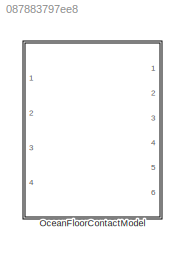
MODEL slx_087883797ee8
KIND library
CONFIG AbsTol = auto
CONFIG EnableMultiTasking = off
CONFIG FixedStep = auto
CONFIG MaxStep = auto
CONFIG MinStep = auto
CONFIG RelTol = 1e-3
CONFIG SampleTimeConstraint = Unconstrained
CONFIG Solver = VariableStepAuto
CONFIG SolverName = VariableStepAuto
CONFIG StartTime = 0.0
CONFIG StopTime = 10.0
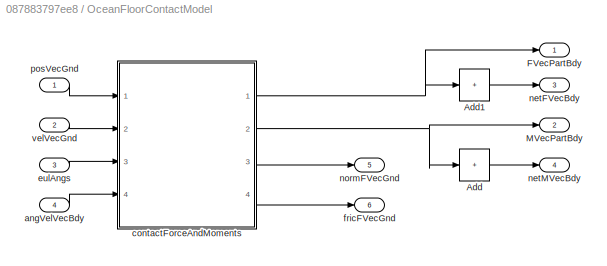
BLOCK [SubSystem] OceanFloorContactModel
  Ports = [4, 6]
  RequestExecContextInheritance = off
  TreatAsAtomicUnit = on
BLOCK [Sum] OceanFloorContactModel/Add
  CollapseDim = 2
  CollapseMode = Specified dimension
  IconShape = rectangular
  Inputs = +
  Ports = [1, 1]
BLOCK [Sum] OceanFloorContactModel/Add1
  CollapseDim = 2
  CollapseMode = Specified dimension
  IconShape = rectangular
  Inputs = +
  Ports = [1, 1]
BLOCK [Outport] OceanFloorContactModel/FVecPartBdy
BLOCK [Outport] OceanFloorContactModel/MVecPartBdy
  Port = 2
BLOCK [Inport] OceanFloorContactModel/angVelVecBdy
  Port = 4
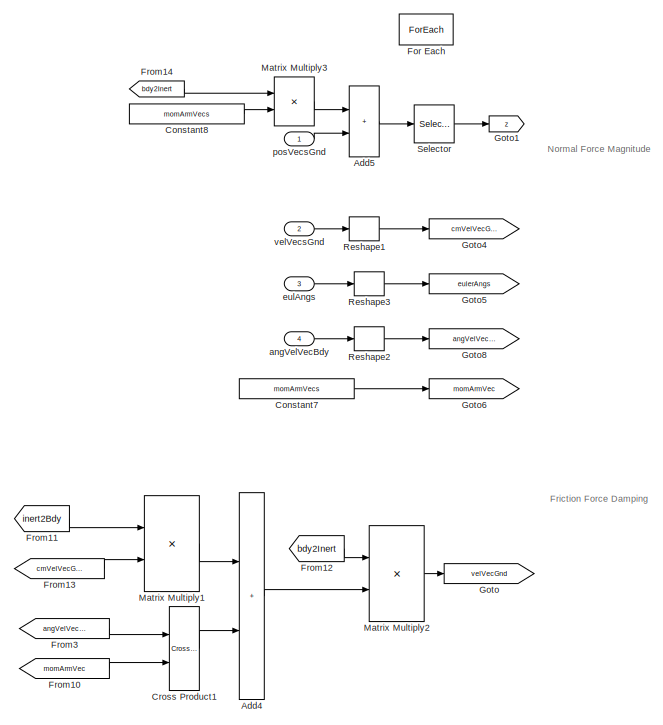
[diagram: OceanFloorContactModel/contactForceAndMoments - part 1/2, left side, full height]
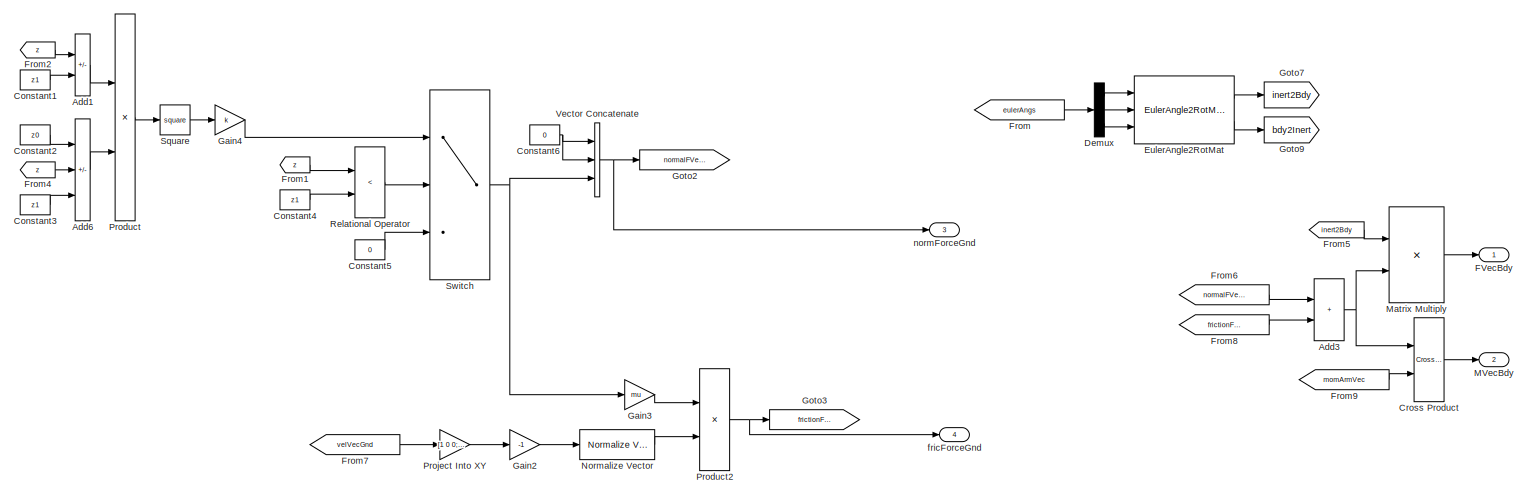
[diagram: OceanFloorContactModel/contactForceAndMoments - part 2/2, middle right region]
BLOCK [SubSystem] OceanFloorContactModel/contactForceAndMoments
  Ports = [4, 4]
  RequestExecContextInheritance = off
BLOCK [Sum] OceanFloorContactModel/contactForceAndMoments/Add1
  IconShape = rectangular
  Inputs = +-
  Ports = [2, 1]
BLOCK [Sum] OceanFloorContactModel/contactForceAndMoments/Add3
  IconShape = rectangular
  Ports = [2, 1]
BLOCK [Sum] OceanFloorContactModel/contactForceAndMoments/Add4
  IconShape = rectangular
  Ports = [2, 1]
BLOCK [Sum] OceanFloorContactModel/contactForceAndMoments/Add5
  IconShape = rectangular
  Ports = [2, 1]
BLOCK [Sum] OceanFloorContactModel/contactForceAndMoments/Add6
  IconShape = rectangular
  Inputs = +-+
  Ports = [3, 1]
BLOCK [Constant] OceanFloorContactModel/contactForceAndMoments/Constant1
  Value = z1
BLOCK [Constant] OceanFloorContactModel/contactForceAndMoments/Constant2
  Value = z0
BLOCK [Constant] OceanFloorContactModel/contactForceAndMoments/Constant3
  Value = z1
BLOCK [Constant] OceanFloorContactModel/contactForceAndMoments/Constant4
  Value = z1
BLOCK [Constant] OceanFloorContactModel/contactForceAndMoments/Constant5
  Value = 0
BLOCK [Constant] OceanFloorContactModel/contactForceAndMoments/Constant6
  Value = 0
BLOCK [Constant] OceanFloorContactModel/contactForceAndMoments/Constant7
  Value = momArmVecs
BLOCK [Constant] OceanFloorContactModel/contactForceAndMoments/Constant8
  Value = momArmVecs
BLOCK [Reference] OceanFloorContactModel/contactForceAndMoments/Cross Product  REF=vrlib/Utilities/Cross Product
  Ports = [2, 1]
  SourceBlock = vrlib/Utilities/Cross Product
  SourceProductBaseCode = SL
  SourceType = Cross Product
BLOCK [Reference] OceanFloorContactModel/contactForceAndMoments/Cross Product1  REF=vrlib/Utilities/Cross Product
  Ports = [2, 1]
  SourceBlock = vrlib/Utilities/Cross Product
  SourceProductBaseCode = SL
  SourceType = Cross Product
BLOCK [Demux] OceanFloorContactModel/contactForceAndMoments/Demux
  Outputs = 3
  Ports = [1, 3]
BLOCK [Reference] OceanFloorContactModel/contactForceAndMoments/EulerAngle2RotMat  REF=eulAng2RotMat_ul/EulerAngle2RotMat
  Ports = [3, 2]
  SourceBlock = eulAng2RotMat_ul/EulerAngle2RotMat
  SourceType = SubSystem
BLOCK [Outport] OceanFloorContactModel/contactForceAndMoments/FVecBdy
  ConcatenationDimension = 2
BLOCK [ForEach] OceanFloorContactModel/contactForceAndMoments/For Each
  DisableCoverage = on
  IterateSubsysMaskParameter = off,off,off,off,off,on,off
  Ports = []
  SubsysMaskParameterIterationDimension = 1,1,1,1,1,2,1
BLOCK [From] OceanFloorContactModel/contactForceAndMoments/From
  GotoTag = eulerAngs
BLOCK [From] OceanFloorContactModel/contactForceAndMoments/From1
  GotoTag = z
BLOCK [From] OceanFloorContactModel/contactForceAndMoments/From10
  GotoTag = momArmVec
BLOCK [From] OceanFloorContactModel/contactForceAndMoments/From11
  GotoTag = inert2Bdy
BLOCK [From] OceanFloorContactModel/contactForceAndMoments/From12
  GotoTag = bdy2Inert
BLOCK [From] OceanFloorContactModel/contactForceAndMoments/From13
  GotoTag = cmVelVecGnd
BLOCK [From] OceanFloorContactModel/contactForceAndMoments/From14
  GotoTag = bdy2Inert
BLOCK [From] OceanFloorContactModel/contactForceAndMoments/From2
  GotoTag = z
BLOCK [From] OceanFloorContactModel/contactForceAndMoments/From3
  GotoTag = angVelVecBdy
BLOCK [From] OceanFloorContactModel/contactForceAndMoments/From4
  GotoTag = z
BLOCK [From] OceanFloorContactModel/contactForceAndMoments/From5
  GotoTag = inert2Bdy
BLOCK [From] OceanFloorContactModel/contactForceAndMoments/From6
  GotoTag = normalFVecGnd
BLOCK [From] OceanFloorContactModel/contactForceAndMoments/From7
  GotoTag = velVecGnd
BLOCK [From] OceanFloorContactModel/contactForceAndMoments/From8
  GotoTag = frictionFVecGnd
BLOCK [From] OceanFloorContactModel/contactForceAndMoments/From9
  GotoTag = momArmVec
BLOCK [Gain] OceanFloorContactModel/contactForceAndMoments/Gain2
  Gain = -1
BLOCK [Gain] OceanFloorContactModel/contactForceAndMoments/Gain3
  Gain = mu
BLOCK [Gain] OceanFloorContactModel/contactForceAndMoments/Gain4
  Gain = k
BLOCK [Goto] OceanFloorContactModel/contactForceAndMoments/Goto
  GotoTag = velVecGnd
BLOCK [Goto] OceanFloorContactModel/contactForceAndMoments/Goto1
  GotoTag = z
BLOCK [Goto] OceanFloorContactModel/contactForceAndMoments/Goto2
  GotoTag = normalFVecGnd
BLOCK [Goto] OceanFloorContactModel/contactForceAndMoments/Goto3
  GotoTag = frictionFVecGnd
BLOCK [Goto] OceanFloorContactModel/contactForceAndMoments/Goto4
  GotoTag = cmVelVecGnd
BLOCK [Goto] OceanFloorContactModel/contactForceAndMoments/Goto5
  GotoTag = eulerAngs
BLOCK [Goto] OceanFloorContactModel/contactForceAndMoments/Goto6
  GotoTag = momArmVec
BLOCK [Goto] OceanFloorContactModel/contactForceAndMoments/Goto7
  GotoTag = inert2Bdy
BLOCK [Goto] OceanFloorContactModel/contactForceAndMoments/Goto8
  GotoTag = angVelVecBdy
BLOCK [Goto] OceanFloorContactModel/contactForceAndMoments/Goto9
  GotoTag = bdy2Inert
BLOCK [Outport] OceanFloorContactModel/contactForceAndMoments/MVecBdy
  ConcatenationDimension = 2
  Port = 2
BLOCK [Product] OceanFloorContactModel/contactForceAndMoments/Matrix Multiply
  Multiplication = Matrix(*)
  Ports = [2, 1]
BLOCK [Product] OceanFloorContactModel/contactForceAndMoments/Matrix Multiply1
  Multiplication = Matrix(*)
  Ports = [2, 1]
BLOCK [Product] OceanFloorContactModel/contactForceAndMoments/Matrix Multiply2
  Multiplication = Matrix(*)
  Ports = [2, 1]
BLOCK [Product] OceanFloorContactModel/contactForceAndMoments/Matrix Multiply3
  Multiplication = Matrix(*)
  Ports = [2, 1]
BLOCK [Reference] OceanFloorContactModel/contactForceAndMoments/Normalize Vector  REF=vrlib/Utilities/Normalize Vector
  Ports = [1, 1]
  SourceBlock = vrlib/Utilities/Normalize Vector
  SourceProductBaseCode = SL
  SourceType = Normalize Vector
BLOCK [Product] OceanFloorContactModel/contactForceAndMoments/Product
  Inputs = */
  Ports = [2, 1]
BLOCK [Product] OceanFloorContactModel/contactForceAndMoments/Product2
  Ports = [2, 1]
BLOCK [Gain] OceanFloorContactModel/contactForceAndMoments/Project Into XY
  Gain = [1 0 0;0 1 0;0 0 0]
  Multiplication = Matrix(K*u)
BLOCK [RelationalOperator] OceanFloorContactModel/contactForceAndMoments/Relational Operator
  InputSameDT = off
  Operator = <
  OutDataTypeStr = boolean
  Ports = [2, 1]
  RndMeth = Simplest
BLOCK [Reshape] OceanFloorContactModel/contactForceAndMoments/Reshape1
  OutputDimensionality = Column vector (2-D)
  Ports = [1, 1]
BLOCK [Reshape] OceanFloorContactModel/contactForceAndMoments/Reshape2
  OutputDimensionality = Column vector (2-D)
  Ports = [1, 1]
BLOCK [Reshape] OceanFloorContactModel/contactForceAndMoments/Reshape3
  OutputDimensionality = Column vector (2-D)
  Ports = [1, 1]
BLOCK [Selector] OceanFloorContactModel/contactForceAndMoments/Selector
  IndexOptions = Index vector (dialog)
  Indices = 3
  InputPortWidth = 3
  OutputSizes = 1
  Ports = [1, 1]
BLOCK [Math] OceanFloorContactModel/contactForceAndMoments/Square
  Operator = square
  Ports = [1, 1]
BLOCK [Switch] OceanFloorContactModel/contactForceAndMoments/Switch
  Criteria = u2 > Threshold
  InputSameDT = off
  SaturateOnIntegerOverflow = off
BLOCK [Concatenate] OceanFloorContactModel/contactForceAndMoments/Vector Concatenate
  NumInputs = 3
  Ports = [3, 1]
BLOCK [Inport] OceanFloorContactModel/contactForceAndMoments/angVelVecBdy
  Port = 4
  PortDimensions = [3 1]
BLOCK [Inport] OceanFloorContactModel/contactForceAndMoments/eulAngs
  Port = 3
  PortDimensions = [3 1]
BLOCK [Outport] OceanFloorContactModel/contactForceAndMoments/fricForceGnd
  ConcatenationDimension = 2
  Port = 4
BLOCK [Outport] OceanFloorContactModel/contactForceAndMoments/normForceGnd
  ConcatenationDimension = 2
  Port = 3
BLOCK [Inport] OceanFloorContactModel/contactForceAndMoments/posVecsGnd
  PortDimensions = [3 1]
BLOCK [Inport] OceanFloorContactModel/contactForceAndMoments/velVecsGnd
  Port = 2
  PortDimensions = [3 1]
BLOCK [Inport] OceanFloorContactModel/eulAngs
  Port = 3
BLOCK [Outport] OceanFloorContactModel/fricFVecGnd
  Port = 6
BLOCK [Outport] OceanFloorContactModel/netFVecBdy
  Port = 3
BLOCK [Outport] OceanFloorContactModel/netMVecBdy
  Port = 4
BLOCK [Outport] OceanFloorContactModel/normFVecGnd
  Port = 5
BLOCK [Inport] OceanFloorContactModel/posVecGnd
BLOCK [Inport] OceanFloorContactModel/velVecGnd
  Port = 2
ANNOTATION OceanFloorContactModel/contactForceAndMoments: Friction Force Damping
ANNOTATION OceanFloorContactModel/contactForceAndMoments: Normal Force Magnitude
LINE OceanFloorContactModel/Add1:1 -> OceanFloorContactModel/netFVecBdy:1
LINE OceanFloorContactModel/Add:1 -> OceanFloorContactModel/netMVecBdy:1
LINE OceanFloorContactModel/angVelVecBdy:1 -> OceanFloorContactModel/contactForceAndMoments:4
LINE OceanFloorContactModel/contactForceAndMoments/Add1:1 -> OceanFloorContactModel/contactForceAndMoments/Product:1
NET OceanFloorContactModel/contactForceAndMoments/Add3:1 -> OceanFloorContactModel/contactForceAndMoments/Cross Product:1, OceanFloorContactModel/contactForceAndMoments/Matrix Multiply:2
LINE OceanFloorContactModel/contactForceAndMoments/Add4:1 -> OceanFloorContactModel/contactForceAndMoments/Matrix Multiply2:2
LINE OceanFloorContactModel/contactForceAndMoments/Add5:1 -> OceanFloorContactModel/contactForceAndMoments/Selector:1
LINE OceanFloorContactModel/contactForceAndMoments/Add6:1 -> OceanFloorContactModel/contactForceAndMoments/Product:2
LINE OceanFloorContactModel/contactForceAndMoments/Constant1:1 -> OceanFloorContactModel/contactForceAndMoments/Add1:2
LINE OceanFloorContactModel/contactForceAndMoments/Constant2:1 -> OceanFloorContactModel/contactForceAndMoments/Add6:1
LINE OceanFloorContactModel/contactForceAndMoments/Constant3:1 -> OceanFloorContactModel/contactForceAndMoments/Add6:3
LINE OceanFloorContactModel/contactForceAndMoments/Constant4:1 -> OceanFloorContactModel/contactForceAndMoments/Relational Operator:2
LINE OceanFloorContactModel/contactForceAndMoments/Constant5:1 -> OceanFloorContactModel/contactForceAndMoments/Switch:3
NET OceanFloorContactModel/contactForceAndMoments/Constant6:1 -> OceanFloorContactModel/contactForceAndMoments/Vector Concatenate:1, OceanFloorContactModel/contactForceAndMoments/Vector Concatenate:2
LINE OceanFloorContactModel/contactForceAndMoments/Constant7:1 -> OceanFloorContactModel/contactForceAndMoments/Goto6:1
LINE OceanFloorContactModel/contactForceAndMoments/Constant8:1 -> OceanFloorContactModel/contactForceAndMoments/Matrix Multiply3:2
LINE OceanFloorContactModel/contactForceAndMoments/Cross Product1:1 -> OceanFloorContactModel/contactForceAndMoments/Add4:2
LINE OceanFloorContactModel/contactForceAndMoments/Cross Product:1 -> OceanFloorContactModel/contactForceAndMoments/MVecBdy:1
LINE OceanFloorContactModel/contactForceAndMoments/Demux:1 -> OceanFloorContactModel/contactForceAndMoments/EulerAngle2RotMat:1
LINE OceanFloorContactModel/contactForceAndMoments/Demux:2 -> OceanFloorContactModel/contactForceAndMoments/EulerAngle2RotMat:2
LINE OceanFloorContactModel/contactForceAndMoments/Demux:3 -> OceanFloorContactModel/contactForceAndMoments/EulerAngle2RotMat:3
LINE OceanFloorContactModel/contactForceAndMoments/EulerAngle2RotMat:1 -> OceanFloorContactModel/contactForceAndMoments/Goto7:1
LINE OceanFloorContactModel/contactForceAndMoments/EulerAngle2RotMat:2 -> OceanFloorContactModel/contactForceAndMoments/Goto9:1
LINE OceanFloorContactModel/contactForceAndMoments/From10:1 -> OceanFloorContactModel/contactForceAndMoments/Cross Product1:2
LINE OceanFloorContactModel/contactForceAndMoments/From11:1 -> OceanFloorContactModel/contactForceAndMoments/Matrix Multiply1:1
LINE OceanFloorContactModel/contactForceAndMoments/From12:1 -> OceanFloorContactModel/contactForceAndMoments/Matrix Multiply2:1
LINE OceanFloorContactModel/contactForceAndMoments/From13:1 -> OceanFloorContactModel/contactForceAndMoments/Matrix Multiply1:2
LINE OceanFloorContactModel/contactForceAndMoments/From14:1 -> OceanFloorContactModel/contactForceAndMoments/Matrix Multiply3:1
LINE OceanFloorContactModel/contactForceAndMoments/From1:1 -> OceanFloorContactModel/contactForceAndMoments/Relational Operator:1
LINE OceanFloorContactModel/contactForceAndMoments/From2:1 -> OceanFloorContactModel/contactForceAndMoments/Add1:1
LINE OceanFloorContactModel/contactForceAndMoments/From3:1 -> OceanFloorContactModel/contactForceAndMoments/Cross Product1:1
LINE OceanFloorContactModel/contactForceAndMoments/From4:1 -> OceanFloorContactModel/contactForceAndMoments/Add6:2
LINE OceanFloorContactModel/contactForceAndMoments/From5:1 -> OceanFloorContactModel/contactForceAndMoments/Matrix Multiply:1
LINE OceanFloorContactModel/contactForceAndMoments/From6:1 -> OceanFloorContactModel/contactForceAndMoments/Add3:1
LINE OceanFloorContactModel/contactForceAndMoments/From7:1 -> OceanFloorContactModel/contactForceAndMoments/Project Into XY:1
LINE OceanFloorContactModel/contactForceAndMoments/From8:1 -> OceanFloorContactModel/contactForceAndMoments/Add3:2
LINE OceanFloorContactModel/contactForceAndMoments/From9:1 -> OceanFloorContactModel/contactForceAndMoments/Cross Product:2
LINE OceanFloorContactModel/contactForceAndMoments/From:1 -> OceanFloorContactModel/contactForceAndMoments/Demux:1
LINE OceanFloorContactModel/contactForceAndMoments/Gain2:1 -> OceanFloorContactModel/contactForceAndMoments/Normalize Vector:1
LINE OceanFloorContactModel/contactForceAndMoments/Gain3:1 -> OceanFloorContactModel/contactForceAndMoments/Product2:1
LINE OceanFloorContactModel/contactForceAndMoments/Gain4:1 -> OceanFloorContactModel/contactForceAndMoments/Switch:1
LINE OceanFloorContactModel/contactForceAndMoments/Matrix Multiply1:1 -> OceanFloorContactModel/contactForceAndMoments/Add4:1
LINE OceanFloorContactModel/contactForceAndMoments/Matrix Multiply2:1 -> OceanFloorContactModel/contactForceAndMoments/Goto:1
LINE OceanFloorContactModel/contactForceAndMoments/Matrix Multiply3:1 -> OceanFloorContactModel/contactForceAndMoments/Add5:1
LINE OceanFloorContactModel/contactForceAndMoments/Matrix Multiply:1 -> OceanFloorContactModel/contactForceAndMoments/FVecBdy:1
LINE OceanFloorContactModel/contactForceAndMoments/Normalize Vector:1 -> OceanFloorContactModel/contactForceAndMoments/Product2:2
NET OceanFloorContactModel/contactForceAndMoments/Product2:1 -> OceanFloorContactModel/contactForceAndMoments/Goto3:1, OceanFloorContactModel/contactForceAndMoments/fricForceGnd:1
LINE OceanFloorContactModel/contactForceAndMoments/Product:1 -> OceanFloorContactModel/contactForceAndMoments/Square:1
LINE OceanFloorContactModel/contactForceAndMoments/Project Into XY:1 -> OceanFloorContactModel/contactForceAndMoments/Gain2:1
LINE OceanFloorContactModel/contactForceAndMoments/Relational Operator:1 -> OceanFloorContactModel/contactForceAndMoments/Switch:2
LINE OceanFloorContactModel/contactForceAndMoments/Reshape1:1 -> OceanFloorContactModel/contactForceAndMoments/Goto4:1
LINE OceanFloorContactModel/contactForceAndMoments/Reshape2:1 -> OceanFloorContactModel/contactForceAndMoments/Goto8:1
LINE OceanFloorContactModel/contactForceAndMoments/Reshape3:1 -> OceanFloorContactModel/contactForceAndMoments/Goto5:1
LINE OceanFloorContactModel/contactForceAndMoments/Selector:1 -> OceanFloorContactModel/contactForceAndMoments/Goto1:1
LINE OceanFloorContactModel/contactForceAndMoments/Square:1 -> OceanFloorContactModel/contactForceAndMoments/Gain4:1
NET OceanFloorContactModel/contactForceAndMoments/Switch:1 -> OceanFloorContactModel/contactForceAndMoments/Gain3:1, OceanFloorContactModel/contactForceAndMoments/Vector Concatenate:3
NET OceanFloorContactModel/contactForceAndMoments/Vector Concatenate:1 -> OceanFloorContactModel/contactForceAndMoments/Goto2:1, OceanFloorContactModel/contactForceAndMoments/normForceGnd:1
LINE OceanFloorContactModel/contactForceAndMoments/angVelVecBdy:1 -> OceanFloorContactModel/contactForceAndMoments/Reshape2:1
LINE OceanFloorContactModel/contactForceAndMoments/eulAngs:1 -> OceanFloorContactModel/contactForceAndMoments/Reshape3:1
LINE OceanFloorContactModel/contactForceAndMoments/posVecsGnd:1 -> OceanFloorContactModel/contactForceAndMoments/Add5:2
LINE OceanFloorContactModel/contactForceAndMoments/velVecsGnd:1 -> OceanFloorContactModel/contactForceAndMoments/Reshape1:1
NET OceanFloorContactModel/contactForceAndMoments:1 -> OceanFloorContactModel/Add1:1, OceanFloorContactModel/FVecPartBdy:1
NET OceanFloorContactModel/contactForceAndMoments:2 -> OceanFloorContactModel/Add:1, OceanFloorContactModel/MVecPartBdy:1
LINE OceanFloorContactModel/contactForceAndMoments:3 -> OceanFloorContactModel/normFVecGnd:1
LINE OceanFloorContactModel/contactForceAndMoments:4 -> OceanFloorContactModel/fricFVecGnd:1
LINE OceanFloorContactModel/eulAngs:1 -> OceanFloorContactModel/contactForceAndMoments:3
LINE OceanFloorContactModel/posVecGnd:1 -> OceanFloorContactModel/contactForceAndMoments:1
LINE OceanFloorContactModel/velVecGnd:1 -> OceanFloorContactModel/contactForceAndMoments:2
note: NET lines group one-source signal fan-out (src -> all destinations, sorted); 1:1 wires keep LINE
